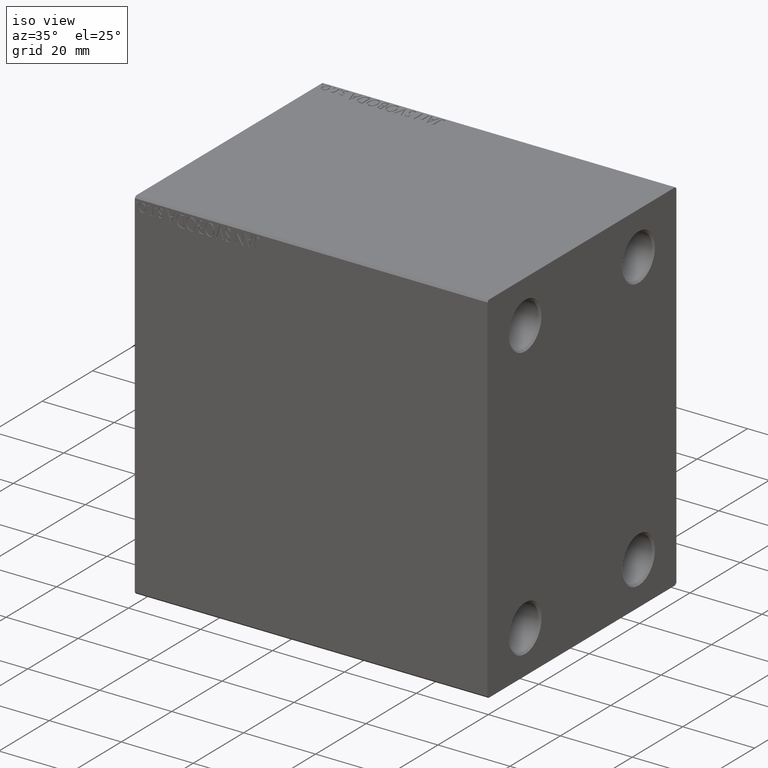
[diagram: clean part render]
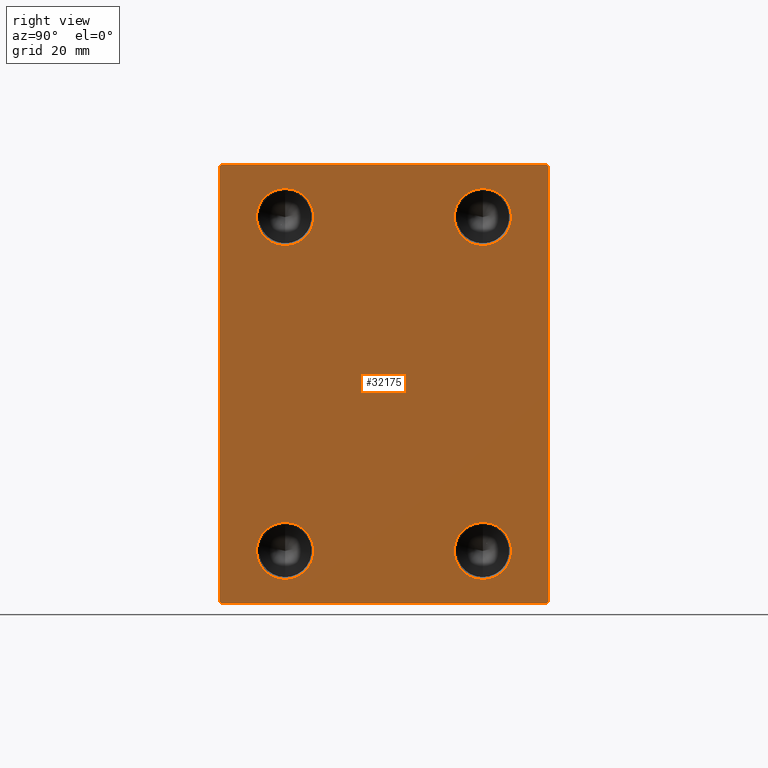
[diagram: tour spotlight — one face highlighted and labeled with its STEP entity id]
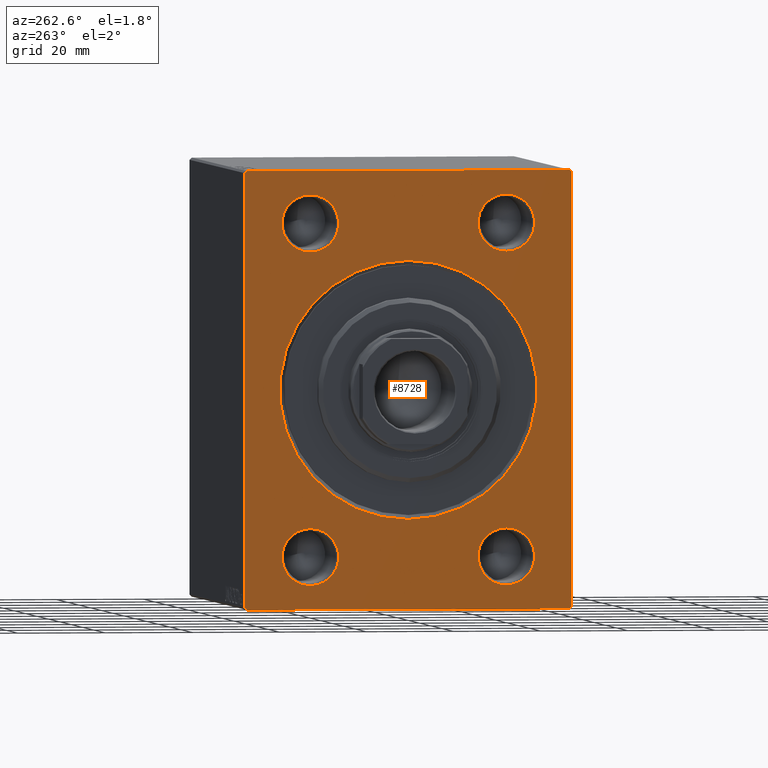
[diagram: tour spotlight — one face highlighted and labeled with its STEP entity id]
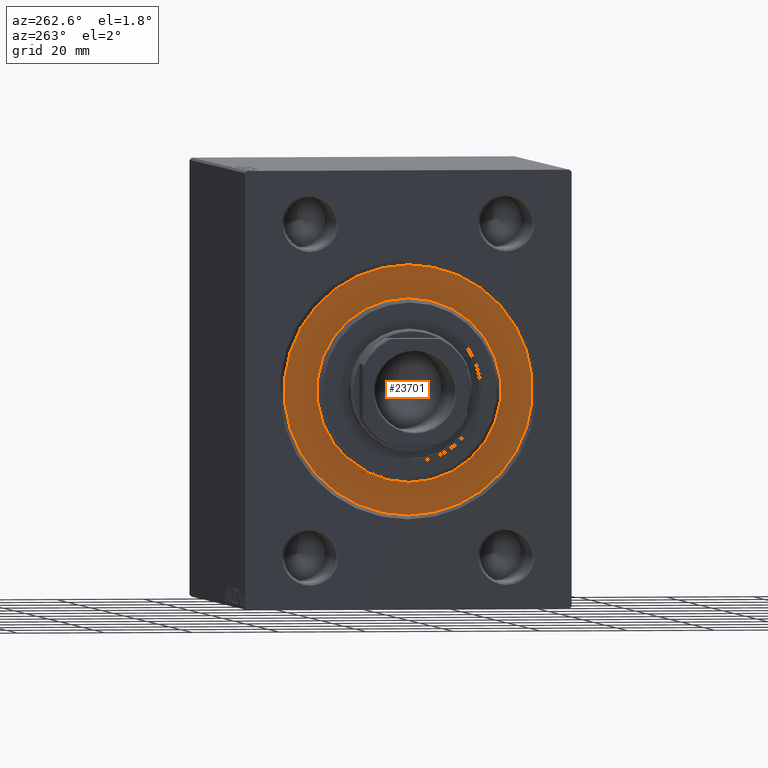
[diagram: tour spotlight — one face highlighted and labeled with its STEP entity id]
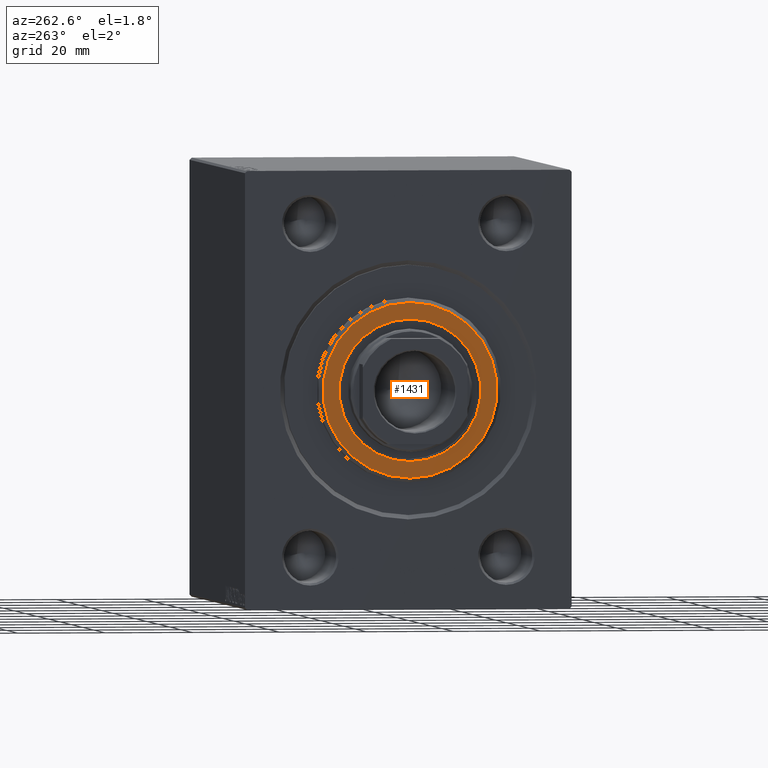
[diagram: tour spotlight — one face highlighted and labeled with its STEP entity id]
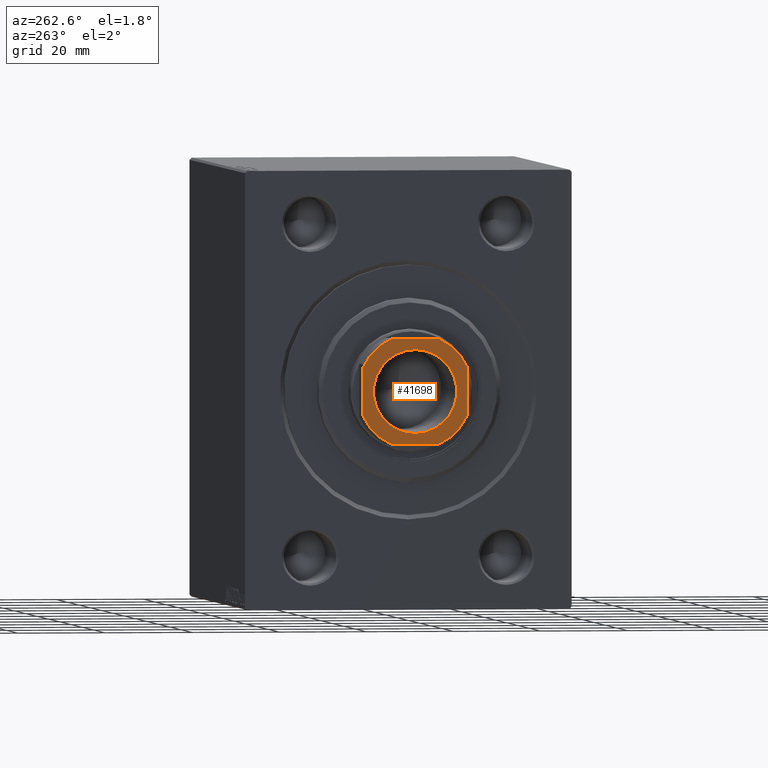
[diagram: tour spotlight — one face highlighted and labeled with its STEP entity id]
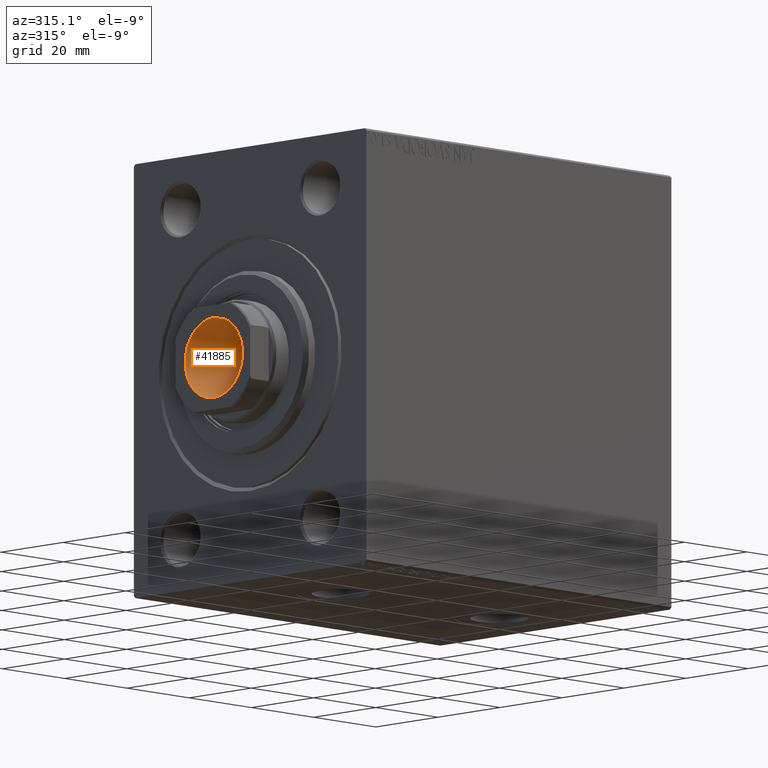
[diagram: tour spotlight — one face highlighted and labeled with its STEP entity id]
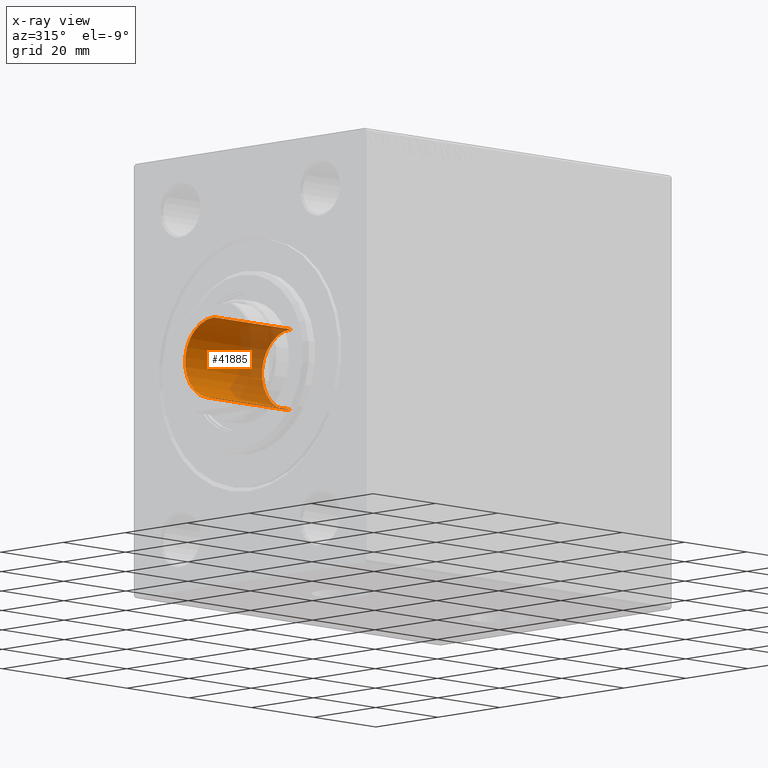
[diagram: x-ray of the same camera — body ghosted, this tour face saturated]
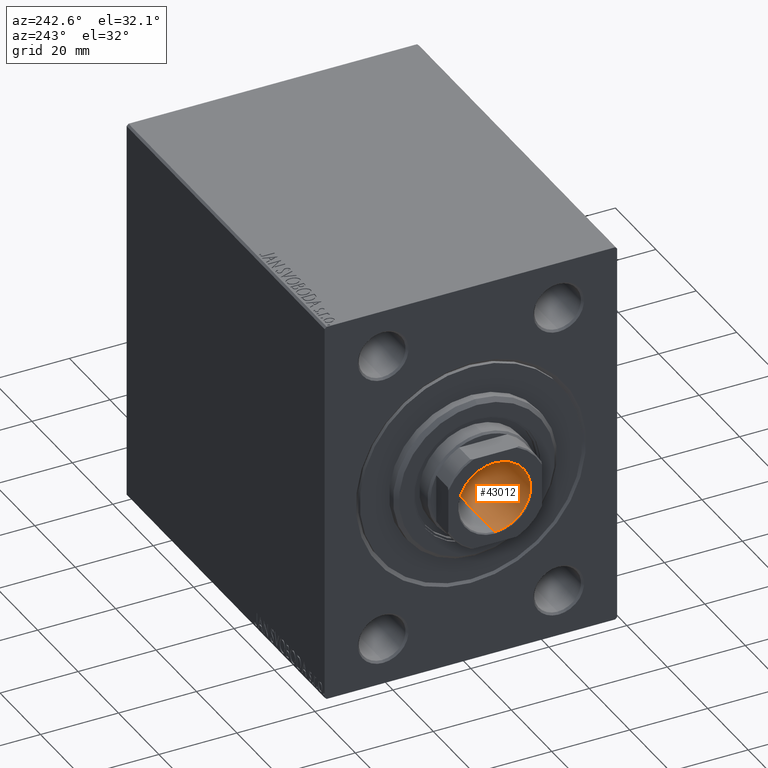
[diagram: tour spotlight — one face highlighted and labeled with its STEP entity id]
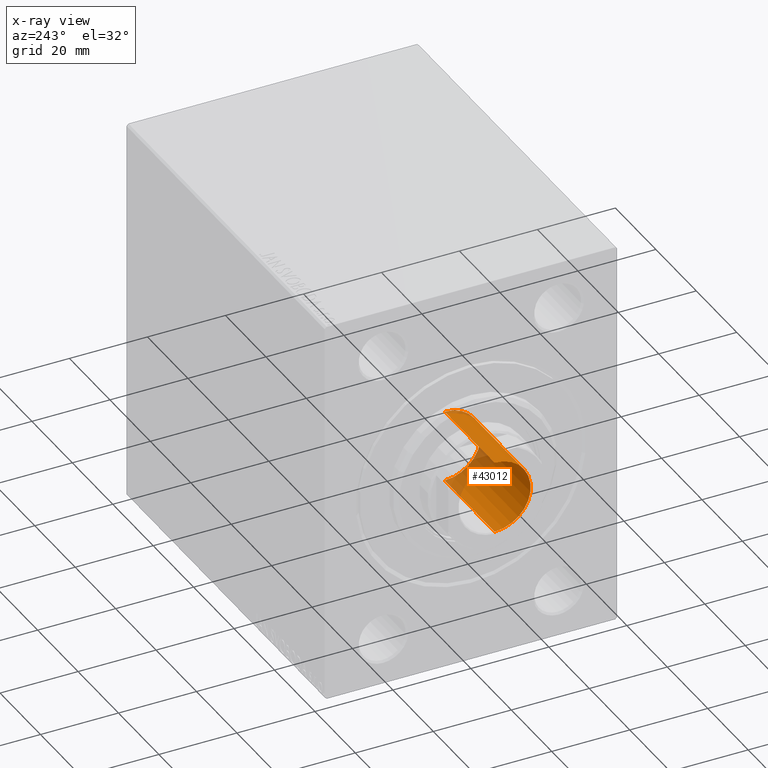
[diagram: x-ray of the same camera — body ghosted, this tour face saturated]
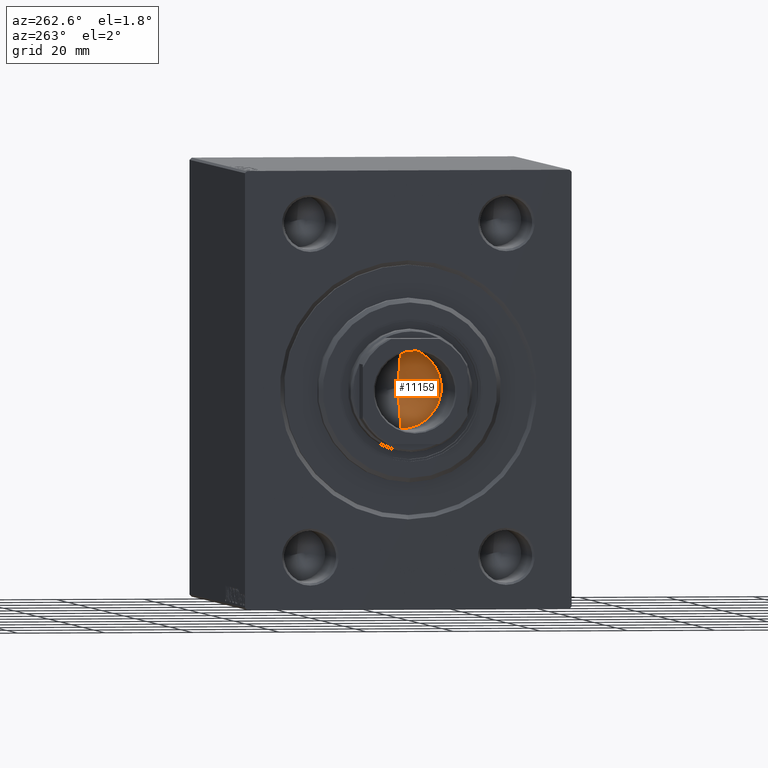
[diagram: tour spotlight — one face highlighted and labeled with its STEP entity id]
A machine part: a face-by-face anatomy tour. The part has 884 B-rep faces; the first image is the clean iso view, then the 8 largest visible faces are spotlighted one at a time (largest first), each with its STEP entity span.

Face 1 — right view, entity #32175. In plain terms, the highlighted planar face has unit normal (1, 0, 0).
Definition (entity closure, byte-faithful):
#378 = CIRCLE ( 'NONE', #31258, 6.499999999999992006 ) ;
#557 = CIRCLE ( 'NONE', #32903, 6.499999999999992006 ) ;
#656 = EDGE_LOOP ( 'NONE', ( #12780, #3390 ) ) ;
#706 = EDGE_LOOP ( 'NONE', ( #22700, #32684 ) ) ;
#926 = CARTESIAN_POINT ( 'NONE',  ( 98.00000000000000000, 22.50000000000000000, -38.00000000000000711 ) ) ;
#1245 = CARTESIAN_POINT ( 'NONE',  ( 98.00000000000000000, 37.00000000000000711, 50.00000000000000711 ) ) ;
#2455 = CARTESIAN_POINT ( 'NONE',  ( 98.00000000000000000, -22.50000000000000000, 31.50000000000000000 ) ) ;
#2709 = CIRCLE ( 'NONE', #25605, 6.499999999999992006 ) ;
#3161 = VERTEX_POINT ( 'NONE', #39024 ) ;
#3390 = ORIENTED_EDGE ( 'NONE', *, *, #21324, .F. ) ;
#3471 = DIRECTION ( 'NONE',  ( 1.000000000000000000, -0.000000000000000000, -0.000000000000000000 ) ) ;
#3757 = DIRECTION ( 'NONE',  ( -0.000000000000000000, 0.7071067811865474617, -0.7071067811865474617 ) ) ;
#3908 = DIRECTION ( 'NONE',  ( 0.000000000000000000, 0.000000000000000000, -1.000000000000000000 ) ) ;
#4563 = CARTESIAN_POINT ( 'NONE',  ( 98.00000000000000000, -37.50000000000000000, 49.49999999999998579 ) ) ;
#4591 = LINE ( 'NONE', #5261, #38910 ) ;
#5261 = CARTESIAN_POINT ( 'NONE',  ( 98.00000000000000000, -37.50000000000000000, -50.00000000000000000 ) ) ;
#5650 = FACE_BOUND ( 'NONE', #706, .T. ) ;
#5760 = CARTESIAN_POINT ( 'NONE',  ( 98.00000000000000000, 37.49999999999999289, 49.50000000000002842 ) ) ;
#6110 = EDGE_CURVE ( 'NONE', #29016, #3161, #4591, .T. ) ;
#6376 = VERTEX_POINT ( 'NONE', #27040 ) ;
#6913 = DIRECTION ( 'NONE',  ( 0.000000000000000000, 0.000000000000000000, -1.000000000000000000 ) ) ;
#7530 = LINE ( 'NONE', #21271, #35783 ) ;
#7902 = ORIENTED_EDGE ( 'NONE', *, *, #28171, .F. ) ;
#8210 = DIRECTION ( 'NONE',  ( -0.000000000000000000, 0.7071067811865524577, 0.7071067811865426878 ) ) ;
#8331 = CARTESIAN_POINT ( 'NONE',  ( 98.00000000000000000, -22.50000000000000000, 44.49999999999998579 ) ) ;
#8929 = CARTESIAN_POINT ( 'NONE',  ( 98.00000000000000000, -22.50000000000000000, 37.99999999999999289 ) ) ;
#9079 = ORIENTED_EDGE ( 'NONE', *, *, #41566, .T. ) ;
#9557 = CARTESIAN_POINT ( 'NONE',  ( 98.00000000000000000, 37.50000000000000711, -50.00000000000000000 ) ) ;
#9885 = AXIS2_PLACEMENT_3D ( 'NONE', #22530, #12615, #19362 ) ;
#11029 = EDGE_CURVE ( 'NONE', #13995, #28272, #30624, .T. ) ;
#11244 = AXIS2_PLACEMENT_3D ( 'NONE', #926, #14622, #28372 ) ;
#11305 = ORIENTED_EDGE ( 'NONE', *, *, #6110, .T. ) ;
#12032 = VECTOR ( 'NONE', #30482, 1000.000000000000000 ) ;
#12615 = DIRECTION ( 'NONE',  ( 1.000000000000000000, 0.000000000000000000, 0.000000000000000000 ) ) ;
#12780 = ORIENTED_EDGE ( 'NONE', *, *, #18842, .F. ) ;
#13053 = FACE_BOUND ( 'NONE', #40717, .T. ) ;
#13995 = VERTEX_POINT ( 'NONE', #5760 ) ;
#14097 = LINE ( 'NONE', #17900, #32911 ) ;
#14601 = CARTESIAN_POINT ( 'NONE',  ( 98.00000000000000000, -22.50000000000000000, -31.50000000000001421 ) ) ;
#14622 = DIRECTION ( 'NONE',  ( 1.000000000000000000, -0.000000000000000000, -0.000000000000000000 ) ) ;
#14850 = ORIENTED_EDGE ( 'NONE', *, *, #41438, .T. ) ;
#15409 = CARTESIAN_POINT ( 'NONE',  ( 98.00000000000000000, 22.50000000000000000, -44.50000000000000000 ) ) ;
#16342 = VECTOR ( 'NONE', #16646, 1000.000000000000000 ) ;
#16646 = DIRECTION ( 'NONE',  ( 0.000000000000000000, -1.000000000000000000, -2.775557561562891844E-16 ) ) ;
#16878 = VERTEX_POINT ( 'NONE', #21732 ) ;
#17676 = CIRCLE ( 'NONE', #11244, 6.499999999999992006 ) ;
#17883 = LINE ( 'NONE', #25323, #21417 ) ;
#17900 = CARTESIAN_POINT ( 'NONE',  ( 98.00000000000000000, -43.50000000000000711, -43.50000000000000711 ) ) ;
#18095 = DIRECTION ( 'NONE',  ( 0.000000000000000000, 0.000000000000000000, -1.000000000000000000 ) ) ;
#18299 = DIRECTION ( 'NONE',  ( 0.000000000000000000, 1.000000000000000000, 0.000000000000000000 ) ) ;
#18478 = CARTESIAN_POINT ( 'NONE',  ( 98.00000000000000000, 22.50000000000000000, 37.99999999999999289 ) ) ;
#18842 = EDGE_CURVE ( 'NONE', #23254, #21996, #21172, .T. ) ;
#19128 = VERTEX_POINT ( 'NONE', #14601 ) ;
#19362 = DIRECTION ( 'NONE',  ( 0.000000000000000000, 0.000000000000000000, -1.000000000000000000 ) ) ;
#20301 = EDGE_CURVE ( 'NONE', #31218, #35541, #26251, .T. ) ;
#20650 = DIRECTION ( 'NONE',  ( 1.000000000000000000, -0.000000000000000000, -0.000000000000000000 ) ) ;
#21051 = CARTESIAN_POINT ( 'NONE',  ( 98.00000000000000000, -22.50000000000000000, -38.00000000000000711 ) ) ;
#21172 = CIRCLE ( 'NONE', #29803, 6.499999999999992006 ) ;
#21271 = CARTESIAN_POINT ( 'NONE',  ( 98.00000000000000000, -43.49999999999972999, 43.50000000000034106 ) ) ;
#21324 = EDGE_CURVE ( 'NONE', #21996, #23254, #378, .T. ) ;
#21381 = ORIENTED_EDGE ( 'NONE', *, *, #30760, .T. ) ;
#21391 = CARTESIAN_POINT ( 'NONE',  ( 98.00000000000000000, -37.50000000000000000, 49.99999999999998579 ) ) ;
#21417 = VECTOR ( 'NONE', #8210, 1000.000000000000000 ) ;
#21732 = CARTESIAN_POINT ( 'NONE',  ( 98.00000000000000000, -37.50000000000000000, -49.49999999999997158 ) ) ;
#21996 = VERTEX_POINT ( 'NONE', #33520 ) ;
#22488 = EDGE_LOOP ( 'NONE', ( #14850, #31794, #9079, #38414, #11305, #32907, #21381, #43921 ) ) ;
#22530 = CARTESIAN_POINT ( 'NONE',  ( 98.00000000000000000, 0.000000000000000000, 0.000000000000000000 ) ) ;
#22700 = ORIENTED_EDGE ( 'NONE', *, *, #20301, .F. ) ;
#22987 = CARTESIAN_POINT ( 'NONE',  ( 98.00000000000000000, 43.49999999999974420, 43.50000000000035527 ) ) ;
#23254 = VERTEX_POINT ( 'NONE', #31725 ) ;
#23268 = ORIENTED_EDGE ( 'NONE', *, *, #24874, .F. ) ;
#23755 = DIRECTION ( 'NONE',  ( 0.000000000000000000, 0.000000000000000000, -1.000000000000000000 ) ) ;
#23847 = VERTEX_POINT ( 'NONE', #4563 ) ;
#24002 = ORIENTED_EDGE ( 'NONE', *, *, #30184, .F. ) ;
#24054 = AXIS2_PLACEMENT_3D ( 'NONE', #8929, #33244, #35959 ) ;
#24201 = DIRECTION ( 'NONE',  ( 1.000000000000000000, -0.000000000000000000, -0.000000000000000000 ) ) ;
#24636 = DIRECTION ( 'NONE',  ( 1.000000000000000000, -0.000000000000000000, -0.000000000000000000 ) ) ;
#24874 = EDGE_CURVE ( 'NONE', #41100, #35981, #17676, .T. ) ;
#25323 = CARTESIAN_POINT ( 'NONE',  ( 98.00000000000000000, 43.49999999999974420, -43.50000000000034817 ) ) ;
#25605 = AXIS2_PLACEMENT_3D ( 'NONE', #28477, #24636, #18095 ) ;
#26251 = CIRCLE ( 'NONE', #24054, 6.499999999999992006 ) ;
#26335 = CIRCLE ( 'NONE', #42174, 6.499999999999992006 ) ;
#26626 = EDGE_LOOP ( 'NONE', ( #7902, #32328 ) ) ;
#26780 = FACE_OUTER_BOUND ( 'NONE', #22488, .T. ) ;
#27040 = CARTESIAN_POINT ( 'NONE',  ( 98.00000000000000000, -36.99999999999999289, 49.99999999999998579 ) ) ;
#27082 = CARTESIAN_POINT ( 'NONE',  ( 98.00000000000000000, 22.50000000000000000, -38.00000000000000711 ) ) ;
#27632 = DIRECTION ( 'NONE',  ( 1.000000000000000000, -0.000000000000000000, -0.000000000000000000 ) ) ;
#28171 = EDGE_CURVE ( 'NONE', #19128, #33769, #2709, .T. ) ;
#28272 = VERTEX_POINT ( 'NONE', #1245 ) ;
#28372 = DIRECTION ( 'NONE',  ( 0.000000000000000000, 0.000000000000000000, -1.000000000000000000 ) ) ;
#28415 = DIRECTION ( 'NONE',  ( 1.000000000000000000, -0.000000000000000000, -0.000000000000000000 ) ) ;
#28477 = CARTESIAN_POINT ( 'NONE',  ( 98.00000000000000000, -22.50000000000000000, -38.00000000000000711 ) ) ;
#29007 = VECTOR ( 'NONE', #43880, 999.9999999999998863 ) ;
#29016 = VERTEX_POINT ( 'NONE', #32756 ) ;
#29253 = CIRCLE ( 'NONE', #38576, 6.499999999999992006 ) ;
#29803 = AXIS2_PLACEMENT_3D ( 'NONE', #18478, #28415, #39197 ) ;
#29885 = EDGE_CURVE ( 'NONE', #33769, #19128, #26335, .T. ) ;
#30184 = EDGE_CURVE ( 'NONE', #35981, #41100, #29253, .T. ) ;
#30482 = DIRECTION ( 'NONE',  ( 0.000000000000000000, -1.387778780781445676E-16, 1.000000000000000000 ) ) ;
#30624 = LINE ( 'NONE', #22987, #29007 ) ;
#30760 = EDGE_CURVE ( 'NONE', #40558, #13995, #40375, .T. ) ;
#30925 = CARTESIAN_POINT ( 'NONE',  ( 98.00000000000000000, -22.50000000000000000, -44.50000000000000000 ) ) ;
#31218 = VERTEX_POINT ( 'NONE', #8331 ) ;
#31258 = AXIS2_PLACEMENT_3D ( 'NONE', #32360, #20650, #37759 ) ;
#31680 = CARTESIAN_POINT ( 'NONE',  ( 98.00000000000000000, 37.50000000000000711, -49.50000000000001421 ) ) ;
#31725 = CARTESIAN_POINT ( 'NONE',  ( 98.00000000000000000, 22.50000000000000000, 44.49999999999998579 ) ) ;
#31794 = ORIENTED_EDGE ( 'NONE', *, *, #41059, .T. ) ;
#31843 = EDGE_CURVE ( 'NONE', #16878, #29016, #14097, .T. ) ;
#32175 = ADVANCED_FACE ( 'NONE', ( #33102, #5650, #40487, #13053, #26780 ), #43429, .T. ) ;
#32328 = ORIENTED_EDGE ( 'NONE', *, *, #29885, .F. ) ;
#32360 = CARTESIAN_POINT ( 'NONE',  ( 98.00000000000000000, 22.50000000000000000, 37.99999999999999289 ) ) ;
#32684 = ORIENTED_EDGE ( 'NONE', *, *, #40501, .F. ) ;
#32756 = CARTESIAN_POINT ( 'NONE',  ( 98.00000000000000000, -37.00000000000000000, -50.00000000000000000 ) ) ;
#32903 = AXIS2_PLACEMENT_3D ( 'NONE', #34834, #27632, #6913 ) ;
#32907 = ORIENTED_EDGE ( 'NONE', *, *, #40934, .T. ) ;
#32911 = VECTOR ( 'NONE', #3757, 1000.000000000000114 ) ;
#33102 = FACE_BOUND ( 'NONE', #656, .T. ) ;
#33244 = DIRECTION ( 'NONE',  ( 1.000000000000000000, -0.000000000000000000, -0.000000000000000000 ) ) ;
#33520 = CARTESIAN_POINT ( 'NONE',  ( 98.00000000000000000, 22.50000000000000000, 31.50000000000000000 ) ) ;
#33769 = VERTEX_POINT ( 'NONE', #30925 ) ;
#34045 = CARTESIAN_POINT ( 'NONE',  ( 98.00000000000000000, 22.50000000000000000, -31.50000000000001421 ) ) ;
#34834 = CARTESIAN_POINT ( 'NONE',  ( 98.00000000000000000, -22.50000000000000000, 37.99999999999999289 ) ) ;
#35003 = DIRECTION ( 'NONE',  ( 0.000000000000000000, -0.7071067811865525687, -0.7071067811865425767 ) ) ;
#35541 = VERTEX_POINT ( 'NONE', #2455 ) ;
#35783 = VECTOR ( 'NONE', #35003, 999.9999999999998863 ) ;
#35959 = DIRECTION ( 'NONE',  ( 0.000000000000000000, 0.000000000000000000, -1.000000000000000000 ) ) ;
#35981 = VERTEX_POINT ( 'NONE', #34045 ) ;
#37593 = LINE ( 'NONE', #40308, #16342 ) ;
#37759 = DIRECTION ( 'NONE',  ( 0.000000000000000000, 0.000000000000000000, -1.000000000000000000 ) ) ;
#38052 = LINE ( 'NONE', #21391, #43691 ) ;
#38262 = DIRECTION ( 'NONE',  ( 0.000000000000000000, 0.000000000000000000, -1.000000000000000000 ) ) ;
#38414 = ORIENTED_EDGE ( 'NONE', *, *, #31843, .T. ) ;
#38576 = AXIS2_PLACEMENT_3D ( 'NONE', #27082, #3471, #3908 ) ;
#38910 = VECTOR ( 'NONE', #18299, 1000.000000000000000 ) ;
#39024 = CARTESIAN_POINT ( 'NONE',  ( 98.00000000000000000, 37.00000000000001421, -50.00000000000000000 ) ) ;
#39197 = DIRECTION ( 'NONE',  ( 0.000000000000000000, 0.000000000000000000, -1.000000000000000000 ) ) ;
#40308 = CARTESIAN_POINT ( 'NONE',  ( 98.00000000000000000, 37.49999999999999289, 50.00000000000000711 ) ) ;
#40375 = LINE ( 'NONE', #9557, #12032 ) ;
#40487 = FACE_BOUND ( 'NONE', #26626, .T. ) ;
#40501 = EDGE_CURVE ( 'NONE', #35541, #31218, #557, .T. ) ;
#40558 = VERTEX_POINT ( 'NONE', #31680 ) ;
#40717 = EDGE_LOOP ( 'NONE', ( #24002, #23268 ) ) ;
#40934 = EDGE_CURVE ( 'NONE', #3161, #40558, #17883, .T. ) ;
#41059 = EDGE_CURVE ( 'NONE', #6376, #23847, #7530, .T. ) ;
#41100 = VERTEX_POINT ( 'NONE', #15409 ) ;
#41438 = EDGE_CURVE ( 'NONE', #28272, #6376, #37593, .T. ) ;
#41566 = EDGE_CURVE ( 'NONE', #23847, #16878, #38052, .T. ) ;
#42174 = AXIS2_PLACEMENT_3D ( 'NONE', #21051, #24201, #23755 ) ;
#43429 = PLANE ( 'NONE',  #9885 ) ;
#43691 = VECTOR ( 'NONE', #38262, 1000.000000000000000 ) ;
#43880 = DIRECTION ( 'NONE',  ( -0.000000000000000000, -0.7071067811865525687, 0.7071067811865425767 ) ) ;
#43921 = ORIENTED_EDGE ( 'NONE', *, *, #11029, .T. ) ;

Face 2 — auxiliary view, entity #8728. In plain terms, the highlighted planar face has unit normal (1, 0, 0).
Definition (entity closure, byte-faithful):
#118 = FACE_BOUND ( 'NONE', #8829, .T. ) ;
#203 = CARTESIAN_POINT ( 'NONE',  ( 0.000000000000000000, 0.000000000000000000, 29.50000000000001421 ) ) ;
#573 = EDGE_CURVE ( 'NONE', #34578, #28332, #10975, .T. ) ;
#856 = LINE ( 'NONE', #35496, #25661 ) ;
#1149 = DIRECTION ( 'NONE',  ( 1.000000000000000000, 0.000000000000000000, 0.000000000000000000 ) ) ;
#1426 = CARTESIAN_POINT ( 'NONE',  ( 0.000000000000000000, -22.50000000000000000, 44.49999999999998579 ) ) ;
#1524 = VERTEX_POINT ( 'NONE', #18862 ) ;
#1804 = EDGE_CURVE ( 'NONE', #19790, #36662, #12038, .T. ) ;
#1870 = LINE ( 'NONE', #36286, #9156 ) ;
#1904 = CARTESIAN_POINT ( 'NONE',  ( 0.000000000000000000, 22.50000000000000000, 37.99999999999999289 ) ) ;
#2076 = ORIENTED_EDGE ( 'NONE', *, *, #29641, .T. ) ;
#2294 = ORIENTED_EDGE ( 'NONE', *, *, #43944, .T. ) ;
#2340 = DIRECTION ( 'NONE',  ( 1.000000000000000000, 0.000000000000000000, 0.000000000000000000 ) ) ;
#2360 = CARTESIAN_POINT ( 'NONE',  ( 0.000000000000000000, 37.50000000000000711, -49.50000000000001421 ) ) ;
#2610 = DIRECTION ( 'NONE',  ( 1.000000000000000000, 0.000000000000000000, 0.000000000000000000 ) ) ;
#2632 = CARTESIAN_POINT ( 'NONE',  ( 0.000000000000000000, -22.50000000000000000, -44.50000000000000000 ) ) ;
#2803 = AXIS2_PLACEMENT_3D ( 'NONE', #30334, #16347, #19737 ) ;
#3021 = DIRECTION ( 'NONE',  ( 0.000000000000000000, 0.000000000000000000, -1.000000000000000000 ) ) ;
#3503 = DIRECTION ( 'NONE',  ( -0.000000000000000000, 0.7071067811865525687, 0.7071067811865425767 ) ) ;
#3999 = DIRECTION ( 'NONE',  ( 0.000000000000000000, 0.000000000000000000, -1.000000000000000000 ) ) ;
#4039 = LINE ( 'NONE', #14154, #17419 ) ;
#4457 = DIRECTION ( 'NONE',  ( 0.000000000000000000, 0.000000000000000000, -1.000000000000000000 ) ) ;
#5139 = EDGE_CURVE ( 'NONE', #7836, #13293, #8664, .T. ) ;
#5319 = CARTESIAN_POINT ( 'NONE',  ( 0.000000000000000000, 37.00000000000000711, 50.00000000000000711 ) ) ;
#5554 = ORIENTED_EDGE ( 'NONE', *, *, #39573, .F. ) ;
#5717 = VERTEX_POINT ( 'NONE', #26266 ) ;
#5901 = DIRECTION ( 'NONE',  ( -0.000000000000000000, -0.7071067811865474617, 0.7071067811865474617 ) ) ;
#6367 = CIRCLE ( 'NONE', #27228, 6.499999999999992006 ) ;
#6368 = CARTESIAN_POINT ( 'NONE',  ( 0.000000000000000000, 37.50000000000000711, -49.50000000000001421 ) ) ;
#6594 = CARTESIAN_POINT ( 'NONE',  ( 0.000000000000000000, 0.000000000000000000, 0.000000000000000000 ) ) ;
#7345 = AXIS2_PLACEMENT_3D ( 'NONE', #1904, #29367, #15605 ) ;
#7417 = DIRECTION ( 'NONE',  ( 0.000000000000000000, 0.000000000000000000, -1.000000000000000000 ) ) ;
#7533 = CARTESIAN_POINT ( 'NONE',  ( 0.000000000000000000, 22.50000000000000000, 44.49999999999998579 ) ) ;
#7836 = VERTEX_POINT ( 'NONE', #5319 ) ;
#8153 = CARTESIAN_POINT ( 'NONE',  ( 0.000000000000000000, -37.50000000000000000, -50.00000000000000000 ) ) ;
#8664 = LINE ( 'NONE', #32087, #37422 ) ;
#8728 = ADVANCED_FACE ( 'NONE', ( #9780, #118, #43970, #23498, #20558, #13159 ), #40600, .F. ) ;
#8829 = EDGE_LOOP ( 'NONE', ( #25704, #43190 ) ) ;
#8863 = DIRECTION ( 'NONE',  ( 0.000000000000000000, -0.7071067811865524577, -0.7071067811865426878 ) ) ;
#9156 = VECTOR ( 'NONE', #29330, 1000.000000000000000 ) ;
#9755 = EDGE_CURVE ( 'NONE', #27199, #1524, #31068, .T. ) ;
#9780 = FACE_BOUND ( 'NONE', #32689, .T. ) ;
#10351 = ORIENTED_EDGE ( 'NONE', *, *, #12676, .T. ) ;
#10435 = CIRCLE ( 'NONE', #16168, 29.50000000000001421 ) ;
#10975 = CIRCLE ( 'NONE', #25347, 6.499999999999992006 ) ;
#11037 = DIRECTION ( 'NONE',  ( 1.000000000000000000, 0.000000000000000000, 0.000000000000000000 ) ) ;
#11041 = DIRECTION ( 'NONE',  ( 0.000000000000000000, 0.000000000000000000, -1.000000000000000000 ) ) ;
#11944 = CARTESIAN_POINT ( 'NONE',  ( 0.000000000000000000, 22.50000000000000000, -38.00000000000000711 ) ) ;
#12038 = LINE ( 'NONE', #2360, #27631 ) ;
#12083 = CARTESIAN_POINT ( 'NONE',  ( 0.000000000000000000, 22.50000000000000000, -38.00000000000000711 ) ) ;
#12676 = EDGE_CURVE ( 'NONE', #39550, #5717, #43475, .T. ) ;
#12689 = AXIS2_PLACEMENT_3D ( 'NONE', #42312, #11037, #7417 ) ;
#13103 = DIRECTION ( 'NONE',  ( 0.000000000000000000, 0.000000000000000000, -1.000000000000000000 ) ) ;
#13153 = CARTESIAN_POINT ( 'NONE',  ( 0.000000000000000000, -36.99999999999999289, 49.99999999999998579 ) ) ;
#13159 = FACE_OUTER_BOUND ( 'NONE', #33955, .T. ) ;
#13293 = VERTEX_POINT ( 'NONE', #13153 ) ;
#13323 = CARTESIAN_POINT ( 'NONE',  ( 0.000000000000000000, -22.50000000000000000, 37.99999999999999289 ) ) ;
#13512 = VECTOR ( 'NONE', #35630, 1000.000000000000000 ) ;
#14130 = CARTESIAN_POINT ( 'NONE',  ( 0.000000000000000000, 22.50000000000000000, 37.99999999999999289 ) ) ;
#14154 = CARTESIAN_POINT ( 'NONE',  ( 0.000000000000000000, 37.00000000000000711, 50.00000000000000711 ) ) ;
#14787 = EDGE_LOOP ( 'NONE', ( #37742, #18368 ) ) ;
#14799 = EDGE_CURVE ( 'NONE', #7836, #17417, #4039, .T. ) ;
#14981 = CARTESIAN_POINT ( 'NONE',  ( 0.000000000000000000, 22.50000000000000000, -44.50000000000000000 ) ) ;
#15605 = DIRECTION ( 'NONE',  ( 0.000000000000000000, 0.000000000000000000, -1.000000000000000000 ) ) ;
#15806 = CARTESIAN_POINT ( 'NONE',  ( 0.000000000000000000, -37.00000000000000000, -50.00000000000000000 ) ) ;
#16168 = AXIS2_PLACEMENT_3D ( 'NONE', #6594, #40583, #3021 ) ;
#16347 = DIRECTION ( 'NONE',  ( 1.000000000000000000, 0.000000000000000000, 0.000000000000000000 ) ) ;
#16394 = EDGE_CURVE ( 'NONE', #28332, #34578, #29032, .T. ) ;
#16406 = CIRCLE ( 'NONE', #2803, 6.499999999999992006 ) ;
#16740 = VERTEX_POINT ( 'NONE', #44239 ) ;
#17273 = CARTESIAN_POINT ( 'NONE',  ( 0.000000000000000000, -22.50000000000000000, -31.50000000000001421 ) ) ;
#17417 = VERTEX_POINT ( 'NONE', #31261 ) ;
#17419 = VECTOR ( 'NONE', #24955, 999.9999999999998863 ) ;
#18368 = ORIENTED_EDGE ( 'NONE', *, *, #35581, .T. ) ;
#18597 = VERTEX_POINT ( 'NONE', #27832 ) ;
#18835 = EDGE_CURVE ( 'NONE', #35833, #13293, #28868, .T. ) ;
#18862 = CARTESIAN_POINT ( 'NONE',  ( 0.000000000000000000, 22.50000000000000000, 31.50000000000000000 ) ) ;
#18896 = DIRECTION ( 'NONE',  ( 0.000000000000000000, 0.000000000000000000, -1.000000000000000000 ) ) ;
#19556 = DIRECTION ( 'NONE',  ( 1.000000000000000000, 0.000000000000000000, 0.000000000000000000 ) ) ;
#19737 = DIRECTION ( 'NONE',  ( 0.000000000000000000, 0.000000000000000000, -1.000000000000000000 ) ) ;
#19790 = VERTEX_POINT ( 'NONE', #6368 ) ;
#20241 = ORIENTED_EDGE ( 'NONE', *, *, #18835, .T. ) ;
#20558 = FACE_BOUND ( 'NONE', #36843, .T. ) ;
#21374 = EDGE_LOOP ( 'NONE', ( #29560, #2294 ) ) ;
#21527 = ORIENTED_EDGE ( 'NONE', *, *, #16394, .T. ) ;
#21569 = EDGE_CURVE ( 'NONE', #25219, #16740, #10435, .T. ) ;
#22076 = CIRCLE ( 'NONE', #37899, 6.499999999999992006 ) ;
#22134 = VERTEX_POINT ( 'NONE', #17273 ) ;
#22867 = DIRECTION ( 'NONE',  ( 1.000000000000000000, 0.000000000000000000, 0.000000000000000000 ) ) ;
#23160 = VECTOR ( 'NONE', #5901, 1000.000000000000114 ) ;
#23498 = FACE_BOUND ( 'NONE', #21374, .T. ) ;
#23947 = DIRECTION ( 'NONE',  ( 0.000000000000000000, 0.000000000000000000, -1.000000000000000000 ) ) ;
#24019 = VECTOR ( 'NONE', #3503, 999.9999999999998863 ) ;
#24301 = CIRCLE ( 'NONE', #44402, 6.499999999999992006 ) ;
#24955 = DIRECTION ( 'NONE',  ( -0.000000000000000000, 0.7071067811865525687, -0.7071067811865425767 ) ) ;
#25219 = VERTEX_POINT ( 'NONE', #203 ) ;
#25272 = LINE ( 'NONE', #8153, #13512 ) ;
#25347 = AXIS2_PLACEMENT_3D ( 'NONE', #12083, #22867, #25354 ) ;
#25354 = DIRECTION ( 'NONE',  ( 0.000000000000000000, 0.000000000000000000, -1.000000000000000000 ) ) ;
#25661 = VECTOR ( 'NONE', #3999, 1000.000000000000000 ) ;
#25704 = ORIENTED_EDGE ( 'NONE', *, *, #27442, .T. ) ;
#25779 = DIRECTION ( 'NONE',  ( 0.000000000000000000, -1.000000000000000000, -2.775557561562891844E-16 ) ) ;
#26266 = CARTESIAN_POINT ( 'NONE',  ( 0.000000000000000000, -37.50000000000000000, -49.49999999999997158 ) ) ;
#26496 = EDGE_CURVE ( 'NONE', #19790, #17417, #1870, .T. ) ;
#27199 = VERTEX_POINT ( 'NONE', #7533 ) ;
#27228 = AXIS2_PLACEMENT_3D ( 'NONE', #14130, #35286, #4457 ) ;
#27442 = EDGE_CURVE ( 'NONE', #22134, #39682, #22076, .T. ) ;
#27631 = VECTOR ( 'NONE', #8863, 1000.000000000000000 ) ;
#27832 = CARTESIAN_POINT ( 'NONE',  ( 0.000000000000000000, -22.50000000000000000, 31.50000000000000000 ) ) ;
#28332 = VERTEX_POINT ( 'NONE', #32749 ) ;
#28529 = CARTESIAN_POINT ( 'NONE',  ( 0.000000000000000000, -37.00000000000000000, -50.00000000000000000 ) ) ;
#28644 = CARTESIAN_POINT ( 'NONE',  ( 0.000000000000000000, -37.50000000000000000, 49.49999999999998579 ) ) ;
#28833 = CARTESIAN_POINT ( 'NONE',  ( 0.000000000000000000, 37.00000000000001421, -50.00000000000000000 ) ) ;
#28868 = LINE ( 'NONE', #28644, #24019 ) ;
#29032 = CIRCLE ( 'NONE', #39768, 6.499999999999992006 ) ;
#29322 = AXIS2_PLACEMENT_3D ( 'NONE', #13323, #2340, #13103 ) ;
#29330 = DIRECTION ( 'NONE',  ( 0.000000000000000000, -1.387778780781445676E-16, 1.000000000000000000 ) ) ;
#29367 = DIRECTION ( 'NONE',  ( 1.000000000000000000, 0.000000000000000000, 0.000000000000000000 ) ) ;
#29560 = ORIENTED_EDGE ( 'NONE', *, *, #9755, .T. ) ;
#29641 = EDGE_CURVE ( 'NONE', #16740, #25219, #40709, .T. ) ;
#29650 = AXIS2_PLACEMENT_3D ( 'NONE', #44420, #2610, #23947 ) ;
#30334 = CARTESIAN_POINT ( 'NONE',  ( 0.000000000000000000, -22.50000000000000000, 37.99999999999999289 ) ) ;
#31068 = CIRCLE ( 'NONE', #7345, 6.499999999999992006 ) ;
#31261 = CARTESIAN_POINT ( 'NONE',  ( 0.000000000000000000, 37.49999999999999289, 49.50000000000002842 ) ) ;
#31703 = ORIENTED_EDGE ( 'NONE', *, *, #14799, .T. ) ;
#31936 = EDGE_CURVE ( 'NONE', #43436, #18597, #38639, .T. ) ;
#32087 = CARTESIAN_POINT ( 'NONE',  ( 0.000000000000000000, 37.49999999999999289, 50.00000000000000711 ) ) ;
#32300 = ORIENTED_EDGE ( 'NONE', *, *, #573, .T. ) ;
#32689 = EDGE_LOOP ( 'NONE', ( #35302, #2076 ) ) ;
#32749 = CARTESIAN_POINT ( 'NONE',  ( 0.000000000000000000, 22.50000000000000000, -31.50000000000001421 ) ) ;
#32914 = ORIENTED_EDGE ( 'NONE', *, *, #41239, .F. ) ;
#33955 = EDGE_LOOP ( 'NONE', ( #5554, #20241, #42524, #31703, #34816, #34254, #32914, #10351 ) ) ;
#34254 = ORIENTED_EDGE ( 'NONE', *, *, #1804, .T. ) ;
#34578 = VERTEX_POINT ( 'NONE', #14981 ) ;
#34816 = ORIENTED_EDGE ( 'NONE', *, *, #26496, .F. ) ;
#35286 = DIRECTION ( 'NONE',  ( 1.000000000000000000, 0.000000000000000000, 0.000000000000000000 ) ) ;
#35302 = ORIENTED_EDGE ( 'NONE', *, *, #21569, .T. ) ;
#35344 = CARTESIAN_POINT ( 'NONE',  ( 0.000000000000000000, -22.50000000000000000, -38.00000000000000711 ) ) ;
#35496 = CARTESIAN_POINT ( 'NONE',  ( 0.000000000000000000, -37.50000000000000000, 49.99999999999998579 ) ) ;
#35581 = EDGE_CURVE ( 'NONE', #18597, #43436, #16406, .T. ) ;
#35630 = DIRECTION ( 'NONE',  ( 0.000000000000000000, 1.000000000000000000, 0.000000000000000000 ) ) ;
#35833 = VERTEX_POINT ( 'NONE', #42675 ) ;
#36286 = CARTESIAN_POINT ( 'NONE',  ( 0.000000000000000000, 37.50000000000000711, -50.00000000000000000 ) ) ;
#36662 = VERTEX_POINT ( 'NONE', #28833 ) ;
#36843 = EDGE_LOOP ( 'NONE', ( #21527, #32300 ) ) ;
#37422 = VECTOR ( 'NONE', #25779, 1000.000000000000000 ) ;
#37742 = ORIENTED_EDGE ( 'NONE', *, *, #31936, .T. ) ;
#37899 = AXIS2_PLACEMENT_3D ( 'NONE', #39387, #39600, #38941 ) ;
#38639 = CIRCLE ( 'NONE', #29322, 6.499999999999992006 ) ;
#38941 = DIRECTION ( 'NONE',  ( 0.000000000000000000, 0.000000000000000000, -1.000000000000000000 ) ) ;
#39387 = CARTESIAN_POINT ( 'NONE',  ( 0.000000000000000000, -22.50000000000000000, -38.00000000000000711 ) ) ;
#39550 = VERTEX_POINT ( 'NONE', #28529 ) ;
#39573 = EDGE_CURVE ( 'NONE', #35833, #5717, #856, .T. ) ;
#39600 = DIRECTION ( 'NONE',  ( 1.000000000000000000, 0.000000000000000000, 0.000000000000000000 ) ) ;
#39682 = VERTEX_POINT ( 'NONE', #2632 ) ;
#39768 = AXIS2_PLACEMENT_3D ( 'NONE', #11944, #19556, #18896 ) ;
#40583 = DIRECTION ( 'NONE',  ( 1.000000000000000000, 0.000000000000000000, 0.000000000000000000 ) ) ;
#40600 = PLANE ( 'NONE',  #29650 ) ;
#40709 = CIRCLE ( 'NONE', #12689, 29.50000000000001421 ) ;
#41239 = EDGE_CURVE ( 'NONE', #39550, #36662, #25272, .T. ) ;
#41589 = EDGE_CURVE ( 'NONE', #39682, #22134, #24301, .T. ) ;
#42312 = CARTESIAN_POINT ( 'NONE',  ( 0.000000000000000000, 0.000000000000000000, 0.000000000000000000 ) ) ;
#42524 = ORIENTED_EDGE ( 'NONE', *, *, #5139, .F. ) ;
#42675 = CARTESIAN_POINT ( 'NONE',  ( 0.000000000000000000, -37.50000000000000000, 49.49999999999998579 ) ) ;
#43190 = ORIENTED_EDGE ( 'NONE', *, *, #41589, .T. ) ;
#43436 = VERTEX_POINT ( 'NONE', #1426 ) ;
#43475 = LINE ( 'NONE', #15806, #23160 ) ;
#43944 = EDGE_CURVE ( 'NONE', #1524, #27199, #6367, .T. ) ;
#43970 = FACE_BOUND ( 'NONE', #14787, .T. ) ;
#44239 = CARTESIAN_POINT ( 'NONE',  ( 0.000000000000000000, 3.612708057484693970E-15, -29.50000000000001421 ) ) ;
#44402 = AXIS2_PLACEMENT_3D ( 'NONE', #35344, #1149, #11041 ) ;
#44420 = CARTESIAN_POINT ( 'NONE',  ( 0.000000000000000000, 0.000000000000000000, 0.000000000000000000 ) ) ;

Face 3 — auxiliary view, entity #23701. In plain terms, the highlighted planar face has unit normal (1, -0, -0).
Definition (entity closure, byte-faithful):
#785 = DIRECTION ( 'NONE',  ( 1.000000000000000000, -0.000000000000000000, 0.000000000000000000 ) ) ;
#3134 = EDGE_CURVE ( 'NONE', #43022, #28006, #33470, .T. ) ;
#3713 = EDGE_LOOP ( 'NONE', ( #32611, #16864 ) ) ;
#3739 = AXIS2_PLACEMENT_3D ( 'NONE', #26522, #43602, #40017 ) ;
#8280 = CIRCLE ( 'NONE', #41330, 28.50000000000000000 ) ;
#8793 = EDGE_LOOP ( 'NONE', ( #25754, #22254 ) ) ;
#10809 = VERTEX_POINT ( 'NONE', #11085 ) ;
#10883 = DIRECTION ( 'NONE',  ( 0.000000000000000000, 0.000000000000000000, -1.000000000000000000 ) ) ;
#11085 = CARTESIAN_POINT ( 'NONE',  ( 0.000000000000000000, 3.490243377569956456E-15, 28.50000000000000000 ) ) ;
#11325 = EDGE_CURVE ( 'NONE', #10809, #15269, #24576, .T. ) ;
#11725 = CARTESIAN_POINT ( 'NONE',  ( 0.000000000000000000, 0.000000000000000000, 0.000000000000000000 ) ) ;
#13459 = EDGE_CURVE ( 'NONE', #28006, #43022, #41852, .T. ) ;
#14177 = CARTESIAN_POINT ( 'NONE',  ( 0.000000000000000000, 2.571758278209441661E-15, -21.00000000000000000 ) ) ;
#14270 = DIRECTION ( 'NONE',  ( 1.000000000000000000, -0.000000000000000000, 0.000000000000000000 ) ) ;
#14452 = DIRECTION ( 'NONE',  ( -1.000000000000000000, 0.000000000000000000, 0.000000000000000000 ) ) ;
#15269 = VERTEX_POINT ( 'NONE', #40150 ) ;
#15750 = DIRECTION ( 'NONE',  ( -1.000000000000000000, 0.000000000000000000, 0.000000000000000000 ) ) ;
#16864 = ORIENTED_EDGE ( 'NONE', *, *, #3134, .F. ) ;
#17143 = DIRECTION ( 'NONE',  ( 0.000000000000000000, 0.000000000000000000, 1.000000000000000000 ) ) ;
#21206 = FACE_BOUND ( 'NONE', #3713, .T. ) ;
#21911 = EDGE_CURVE ( 'NONE', #15269, #10809, #8280, .T. ) ;
#22254 = ORIENTED_EDGE ( 'NONE', *, *, #11325, .F. ) ;
#22470 = AXIS2_PLACEMENT_3D ( 'NONE', #35198, #785, #10883 ) ;
#22879 = CARTESIAN_POINT ( 'NONE',  ( 0.000000000000000000, 0.000000000000000000, 21.00000000000000000 ) ) ;
#23701 = ADVANCED_FACE ( 'NONE', ( #21206, #41909 ), #37860, .F. ) ;
#24576 = CIRCLE ( 'NONE', #3739, 28.50000000000000000 ) ;
#25754 = ORIENTED_EDGE ( 'NONE', *, *, #21911, .F. ) ;
#26522 = CARTESIAN_POINT ( 'NONE',  ( 0.000000000000000000, 0.000000000000000000, 0.000000000000000000 ) ) ;
#28006 = VERTEX_POINT ( 'NONE', #22879 ) ;
#29887 = AXIS2_PLACEMENT_3D ( 'NONE', #42396, #14270, #32291 ) ;
#32291 = DIRECTION ( 'NONE',  ( 0.000000000000000000, 0.000000000000000000, -1.000000000000000000 ) ) ;
#32611 = ORIENTED_EDGE ( 'NONE', *, *, #13459, .F. ) ;
#33470 = CIRCLE ( 'NONE', #29887, 21.00000000000000000 ) ;
#34498 = CARTESIAN_POINT ( 'NONE',  ( 0.000000000000000000, 0.000000000000000000, 0.000000000000000000 ) ) ;
#35198 = CARTESIAN_POINT ( 'NONE',  ( 0.000000000000000000, 0.000000000000000000, 0.000000000000000000 ) ) ;
#37860 = PLANE ( 'NONE',  #41359 ) ;
#39393 = DIRECTION ( 'NONE',  ( 0.000000000000000000, 0.000000000000000000, 1.000000000000000000 ) ) ;
#40017 = DIRECTION ( 'NONE',  ( 0.000000000000000000, 0.000000000000000000, 1.000000000000000000 ) ) ;
#40150 = CARTESIAN_POINT ( 'NONE',  ( 0.000000000000000000, 0.000000000000000000, -28.50000000000000000 ) ) ;
#41330 = AXIS2_PLACEMENT_3D ( 'NONE', #11725, #15750, #39393 ) ;
#41359 = AXIS2_PLACEMENT_3D ( 'NONE', #34498, #14452, #17143 ) ;
#41852 = CIRCLE ( 'NONE', #22470, 21.00000000000000000 ) ;
#41909 = FACE_OUTER_BOUND ( 'NONE', #8793, .T. ) ;
#42396 = CARTESIAN_POINT ( 'NONE',  ( 0.000000000000000000, 0.000000000000000000, 0.000000000000000000 ) ) ;
#43022 = VERTEX_POINT ( 'NONE', #14177 ) ;
#43602 = DIRECTION ( 'NONE',  ( -1.000000000000000000, 0.000000000000000000, 0.000000000000000000 ) ) ;

Face 4 — auxiliary view, entity #1431. In plain terms, the highlighted planar face has unit normal (-1, 0, 0).
Definition (entity closure, byte-faithful):
#1383 = AXIS2_PLACEMENT_3D ( 'NONE', #41302, #28896, #18506 ) ;
#1431 = ADVANCED_FACE ( 'NONE', ( #23623, #37352 ), #29957, .T. ) ;
#2361 = ORIENTED_EDGE ( 'NONE', *, *, #3404, .F. ) ;
#2937 = AXIS2_PLACEMENT_3D ( 'NONE', #37317, #33948, #37092 ) ;
#3404 = EDGE_CURVE ( 'NONE', #20397, #35735, #38139, .T. ) ;
#4725 = EDGE_CURVE ( 'NONE', #18208, #29676, #7220, .T. ) ;
#6512 = CARTESIAN_POINT ( 'NONE',  ( 3.000000000000000000, 0.000000000000000000, 0.000000000000000000 ) ) ;
#6770 = EDGE_CURVE ( 'NONE', #35735, #20397, #21666, .T. ) ;
#7220 = CIRCLE ( 'NONE', #2937, 19.99999999999999645 ) ;
#10158 = AXIS2_PLACEMENT_3D ( 'NONE', #32828, #15916, #12332 ) ;
#11103 = AXIS2_PLACEMENT_3D ( 'NONE', #6512, #43648, #26568 ) ;
#12332 = DIRECTION ( 'NONE',  ( 0.000000000000000000, 0.000000000000000000, -1.000000000000000000 ) ) ;
#13274 = CARTESIAN_POINT ( 'NONE',  ( 3.000000000000000000, 0.000000000000000000, 19.99999999999999645 ) ) ;
#14655 = CARTESIAN_POINT ( 'NONE',  ( 3.000000000000000000, 0.000000000000000000, 0.000000000000000000 ) ) ;
#15012 = CIRCLE ( 'NONE', #1383, 19.99999999999999645 ) ;
#15101 = DIRECTION ( 'NONE',  ( 1.000000000000000000, 0.000000000000000000, 0.000000000000000000 ) ) ;
#15916 = DIRECTION ( 'NONE',  ( 1.000000000000000000, 0.000000000000000000, 0.000000000000000000 ) ) ;
#16130 = ORIENTED_EDGE ( 'NONE', *, *, #6770, .F. ) ;
#17519 = ORIENTED_EDGE ( 'NONE', *, *, #4725, .T. ) ;
#18208 = VERTEX_POINT ( 'NONE', #13274 ) ;
#18506 = DIRECTION ( 'NONE',  ( 0.000000000000000000, 0.000000000000000000, -1.000000000000000000 ) ) ;
#19967 = ORIENTED_EDGE ( 'NONE', *, *, #44132, .T. ) ;
#20397 = VERTEX_POINT ( 'NONE', #21048 ) ;
#21048 = CARTESIAN_POINT ( 'NONE',  ( 3.000000000000000000, 0.000000000000000000, -16.25000000000000000 ) ) ;
#21666 = CIRCLE ( 'NONE', #10158, 16.25000000000000000 ) ;
#23623 = FACE_OUTER_BOUND ( 'NONE', #34271, .T. ) ;
#26568 = DIRECTION ( 'NONE',  ( 0.000000000000000000, 0.000000000000000000, -1.000000000000000000 ) ) ;
#28896 = DIRECTION ( 'NONE',  ( 1.000000000000000000, -0.000000000000000000, 0.000000000000000000 ) ) ;
#29676 = VERTEX_POINT ( 'NONE', #35340 ) ;
#29957 = PLANE ( 'NONE',  #11103 ) ;
#30248 = AXIS2_PLACEMENT_3D ( 'NONE', #14655, #15101, #34698 ) ;
#31518 = EDGE_LOOP ( 'NONE', ( #2361, #16130 ) ) ;
#32828 = CARTESIAN_POINT ( 'NONE',  ( 3.000000000000000000, 0.000000000000000000, 0.000000000000000000 ) ) ;
#33948 = DIRECTION ( 'NONE',  ( 1.000000000000000000, -0.000000000000000000, 0.000000000000000000 ) ) ;
#34271 = EDGE_LOOP ( 'NONE', ( #17519, #19967 ) ) ;
#34698 = DIRECTION ( 'NONE',  ( 0.000000000000000000, 0.000000000000000000, -1.000000000000000000 ) ) ;
#35340 = CARTESIAN_POINT ( 'NONE',  ( 3.000000000000000000, 2.510525938252074087E-15, -19.99999999999999645 ) ) ;
#35735 = VERTEX_POINT ( 'NONE', #38180 ) ;
#37092 = DIRECTION ( 'NONE',  ( 0.000000000000000000, 0.000000000000000000, -1.000000000000000000 ) ) ;
#37317 = CARTESIAN_POINT ( 'NONE',  ( 3.000000000000000000, 0.000000000000000000, 0.000000000000000000 ) ) ;
#37352 = FACE_BOUND ( 'NONE', #31518, .T. ) ;
#38139 = CIRCLE ( 'NONE', #30248, 16.25000000000000000 ) ;
#38180 = CARTESIAN_POINT ( 'NONE',  ( 3.000000000000000000, 1.990051048614449313E-15, 16.25000000000000000 ) ) ;
#41302 = CARTESIAN_POINT ( 'NONE',  ( 3.000000000000000000, 0.000000000000000000, 0.000000000000000000 ) ) ;
#43648 = DIRECTION ( 'NONE',  ( 1.000000000000000000, -0.000000000000000000, 0.000000000000000000 ) ) ;
#44132 = EDGE_CURVE ( 'NONE', #29676, #18208, #15012, .T. ) ;

Face 5 — auxiliary view, entity #41698. In plain terms, the highlighted planar face has unit normal (-1, 0, 0).
Definition (entity closure, byte-faithful):
#1239 = CARTESIAN_POINT ( 'NONE',  ( -5.499090833947052559, -12.00000000000000355, 96.00000000000000000 ) ) ;
#1644 = VERTEX_POINT ( 'NONE', #2673 ) ;
#1743 = CARTESIAN_POINT ( 'NONE',  ( 0.000000000000000000, 0.000000000000000000, 96.00000000000000000 ) ) ;
#2673 = CARTESIAN_POINT ( 'NONE',  ( -9.549999999999988276, 1.169537693185720980E-15, 96.00000000000000000 ) ) ;
#2692 = DIRECTION ( 'NONE',  ( -1.000000000000000000, -0.000000000000000000, -0.000000000000000000 ) ) ;
#2731 = AXIS2_PLACEMENT_3D ( 'NONE', #22508, #22061, #18888 ) ;
#3383 = EDGE_CURVE ( 'NONE', #22690, #4602, #11525, .T. ) ;
#3406 = DIRECTION ( 'NONE',  ( 1.000000000000000000, 0.000000000000000000, 0.000000000000000000 ) ) ;
#3430 = VERTEX_POINT ( 'NONE', #25467 ) ;
#3629 = CARTESIAN_POINT ( 'NONE',  ( 0.000000000000000000, 0.000000000000000000, 96.00000000000000000 ) ) ;
#4429 = ORIENTED_EDGE ( 'NONE', *, *, #37481, .T. ) ;
#4602 = VERTEX_POINT ( 'NONE', #41857 ) ;
#5516 = DIRECTION ( 'NONE',  ( 1.000000000000000000, 0.000000000000000000, 0.000000000000000000 ) ) ;
#5847 = CARTESIAN_POINT ( 'NONE',  ( 0.000000000000000000, 0.000000000000000000, 96.00000000000000000 ) ) ;
#7099 = EDGE_LOOP ( 'NONE', ( #11635, #20830, #18275, #40894, #18919, #10998, #20742, #31525 ) ) ;
#7457 = VECTOR ( 'NONE', #11742, 1000.000000000000000 ) ;
#8548 = FACE_OUTER_BOUND ( 'NONE', #7099, .T. ) ;
#8594 = CARTESIAN_POINT ( 'NONE',  ( 5.499090833947041901, 11.99999999999999645, 96.00000000000000000 ) ) ;
#9133 = DIRECTION ( 'NONE',  ( 0.000000000000000000, -0.000000000000000000, -1.000000000000000000 ) ) ;
#9224 = DIRECTION ( 'NONE',  ( 0.000000000000000000, -0.000000000000000000, -1.000000000000000000 ) ) ;
#9265 = VERTEX_POINT ( 'NONE', #37343 ) ;
#9722 = EDGE_CURVE ( 'NONE', #12462, #36111, #15381, .T. ) ;
#10794 = EDGE_CURVE ( 'NONE', #10944, #22226, #41677, .T. ) ;
#10944 = VERTEX_POINT ( 'NONE', #19588 ) ;
#10998 = ORIENTED_EDGE ( 'NONE', *, *, #29522, .T. ) ;
#11309 = EDGE_LOOP ( 'NONE', ( #4429, #34826 ) ) ;
#11375 = VECTOR ( 'NONE', #2692, 1000.000000000000000 ) ;
#11525 = LINE ( 'NONE', #21641, #7457 ) ;
#11635 = ORIENTED_EDGE ( 'NONE', *, *, #10794, .T. ) ;
#11742 = DIRECTION ( 'NONE',  ( 1.000000000000000000, 0.000000000000000000, 0.000000000000000000 ) ) ;
#11854 = DIRECTION ( 'NONE',  ( 1.000000000000000000, 0.000000000000000000, 0.000000000000000000 ) ) ;
#12025 = CARTESIAN_POINT ( 'NONE',  ( -12.00000000000000355, 11.99999999999999645, 96.00000000000000000 ) ) ;
#12462 = VERTEX_POINT ( 'NONE', #33200 ) ;
#13783 = EDGE_CURVE ( 'NONE', #9265, #12462, #18878, .T. ) ;
#15381 = LINE ( 'NONE', #12025, #18854 ) ;
#15534 = DIRECTION ( 'NONE',  ( -0.000000000000000000, 0.000000000000000000, 1.000000000000000000 ) ) ;
#15947 = PLANE ( 'NONE',  #2731 ) ;
#16872 = DIRECTION ( 'NONE',  ( -0.000000000000000000, 0.000000000000000000, 1.000000000000000000 ) ) ;
#17087 = AXIS2_PLACEMENT_3D ( 'NONE', #5847, #9224, #39827 ) ;
#17123 = CIRCLE ( 'NONE', #42304, 13.20000000000000995 ) ;
#17811 = DIRECTION ( 'NONE',  ( -2.168404344971008868E-16, 1.000000000000000000, -0.000000000000000000 ) ) ;
#18275 = ORIENTED_EDGE ( 'NONE', *, *, #41903, .T. ) ;
#18854 = VECTOR ( 'NONE', #42615, 1000.000000000000000 ) ;
#18878 = CIRCLE ( 'NONE', #35414, 13.20000000000002238 ) ;
#18888 = DIRECTION ( 'NONE',  ( 1.000000000000000000, 0.000000000000000000, 0.000000000000000000 ) ) ;
#18919 = ORIENTED_EDGE ( 'NONE', *, *, #9722, .T. ) ;
#19357 = CARTESIAN_POINT ( 'NONE',  ( 0.000000000000000000, 0.000000000000000000, 96.00000000000000000 ) ) ;
#19588 = CARTESIAN_POINT ( 'NONE',  ( 12.00000000000000000, -5.499090833947034795, 96.00000000000000000 ) ) ;
#20656 = CIRCLE ( 'NONE', #33594, 13.20000000000000995 ) ;
#20742 = ORIENTED_EDGE ( 'NONE', *, *, #3383, .T. ) ;
#20830 = ORIENTED_EDGE ( 'NONE', *, *, #35111, .T. ) ;
#21641 = CARTESIAN_POINT ( 'NONE',  ( -11.99999999999999822, -12.00000000000000355, 96.00000000000000000 ) ) ;
#22061 = DIRECTION ( 'NONE',  ( -0.000000000000000000, 0.000000000000000000, 1.000000000000000000 ) ) ;
#22226 = VERTEX_POINT ( 'NONE', #27650 ) ;
#22508 = CARTESIAN_POINT ( 'NONE',  ( 0.000000000000000000, 0.000000000000000000, 96.00000000000000000 ) ) ;
#22610 = DIRECTION ( 'NONE',  ( -0.000000000000000000, 0.000000000000000000, 1.000000000000000000 ) ) ;
#22690 = VERTEX_POINT ( 'NONE', #1239 ) ;
#22878 = CIRCLE ( 'NONE', #30051, 9.549999999999988276 ) ;
#24566 = CARTESIAN_POINT ( 'NONE',  ( 0.000000000000000000, 0.000000000000000000, 96.00000000000000000 ) ) ;
#24801 = CARTESIAN_POINT ( 'NONE',  ( -12.00000000000000000, -5.499090833947057888, 96.00000000000000000 ) ) ;
#25467 = CARTESIAN_POINT ( 'NONE',  ( 9.549999999999988276, 0.000000000000000000, 96.00000000000000000 ) ) ;
#26465 = CIRCLE ( 'NONE', #17087, 9.549999999999988276 ) ;
#27650 = CARTESIAN_POINT ( 'NONE',  ( 11.99999999999999645, 5.499090833947039236, 96.00000000000000000 ) ) ;
#29522 = EDGE_CURVE ( 'NONE', #36111, #22690, #33534, .T. ) ;
#30051 = AXIS2_PLACEMENT_3D ( 'NONE', #1743, #9133, #11854 ) ;
#31525 = ORIENTED_EDGE ( 'NONE', *, *, #40180, .T. ) ;
#32423 = FACE_BOUND ( 'NONE', #11309, .T. ) ;
#32450 = DIRECTION ( 'NONE',  ( -0.000000000000000000, 0.000000000000000000, 1.000000000000000000 ) ) ;
#32797 = EDGE_CURVE ( 'NONE', #1644, #3430, #22878, .T. ) ;
#32842 = AXIS2_PLACEMENT_3D ( 'NONE', #3629, #16872, #3406 ) ;
#33200 = CARTESIAN_POINT ( 'NONE',  ( -12.00000000000000178, 5.499090833947057000, 96.00000000000000000 ) ) ;
#33534 = CIRCLE ( 'NONE', #32842, 13.20000000000002238 ) ;
#33594 = AXIS2_PLACEMENT_3D ( 'NONE', #39701, #22610, #5516 ) ;
#34826 = ORIENTED_EDGE ( 'NONE', *, *, #32797, .T. ) ;
#35111 = EDGE_CURVE ( 'NONE', #22226, #42800, #17123, .T. ) ;
#35414 = AXIS2_PLACEMENT_3D ( 'NONE', #19357, #15534, #36037 ) ;
#36037 = DIRECTION ( 'NONE',  ( 1.000000000000000000, 0.000000000000000000, 0.000000000000000000 ) ) ;
#36111 = VERTEX_POINT ( 'NONE', #24801 ) ;
#36173 = VECTOR ( 'NONE', #17811, 1000.000000000000000 ) ;
#37321 = LINE ( 'NONE', #40257, #11375 ) ;
#37343 = CARTESIAN_POINT ( 'NONE',  ( -5.499090833947067658, 11.99999999999999645, 96.00000000000000000 ) ) ;
#37481 = EDGE_CURVE ( 'NONE', #3430, #1644, #26465, .T. ) ;
#38966 = DIRECTION ( 'NONE',  ( 1.000000000000000000, 0.000000000000000000, 0.000000000000000000 ) ) ;
#38983 = CARTESIAN_POINT ( 'NONE',  ( 11.99999999999999645, 11.99999999999999645, 96.00000000000000000 ) ) ;
#39701 = CARTESIAN_POINT ( 'NONE',  ( 0.000000000000000000, 0.000000000000000000, 96.00000000000000000 ) ) ;
#39827 = DIRECTION ( 'NONE',  ( 1.000000000000000000, 0.000000000000000000, 0.000000000000000000 ) ) ;
#40180 = EDGE_CURVE ( 'NONE', #4602, #10944, #20656, .T. ) ;
#40257 = CARTESIAN_POINT ( 'NONE',  ( -12.00000000000000355, 11.99999999999999645, 96.00000000000000000 ) ) ;
#40894 = ORIENTED_EDGE ( 'NONE', *, *, #13783, .T. ) ;
#41677 = LINE ( 'NONE', #38983, #36173 ) ;
#41698 = ADVANCED_FACE ( 'NONE', ( #32423, #8548 ), #15947, .T. ) ;
#41857 = CARTESIAN_POINT ( 'NONE',  ( 5.499090833947025914, -12.00000000000000355, 96.00000000000000000 ) ) ;
#41903 = EDGE_CURVE ( 'NONE', #42800, #9265, #37321, .T. ) ;
#42304 = AXIS2_PLACEMENT_3D ( 'NONE', #24566, #32450, #38966 ) ;
#42615 = DIRECTION ( 'NONE',  ( 2.168404344971008868E-16, -1.000000000000000000, 0.000000000000000000 ) ) ;
#42800 = VERTEX_POINT ( 'NONE', #8594 ) ;

Face 6 — auxiliary view, entity #41885. An x-ray twin of the same camera follows (body ghosted, this face saturated) — the face is partly hidden behind the body. In plain terms, the highlighted cylindrical surface (partial cylindrical patch) has radius 9.25 mm, axis along (-1, 0, 0).
Definition (entity closure, byte-faithful):
#467 = VECTOR ( 'NONE', #35440, 1000.000000000000000 ) ;
#4390 = AXIS2_PLACEMENT_3D ( 'NONE', #35133, #31538, #8102 ) ;
#4441 = VERTEX_POINT ( 'NONE', #14387 ) ;
#5644 = EDGE_CURVE ( 'NONE', #28318, #4441, #20190, .T. ) ;
#8102 = DIRECTION ( 'NONE',  ( 1.000000000000000000, 0.000000000000000000, 0.000000000000000000 ) ) ;
#9580 = CIRCLE ( 'NONE', #23928, 9.249999999999994671 ) ;
#13771 = ORIENTED_EDGE ( 'NONE', *, *, #28206, .T. ) ;
#14387 = CARTESIAN_POINT ( 'NONE',  ( -9.249999999999994671, 1.132798289211300909E-15, 95.70000000000000284 ) ) ;
#15194 = EDGE_CURVE ( 'NONE', #37504, #31048, #9580, .T. ) ;
#15302 = CARTESIAN_POINT ( 'NONE',  ( 9.249999999999994671, 0.000000000000000000, 71.00000000000001421 ) ) ;
#16589 = DIRECTION ( 'NONE',  ( -0.000000000000000000, -0.000000000000000000, 1.000000000000000000 ) ) ;
#17081 = AXIS2_PLACEMENT_3D ( 'NONE', #36669, #16589, #26535 ) ;
#19223 = DIRECTION ( 'NONE',  ( -0.000000000000000000, -0.000000000000000000, 1.000000000000000000 ) ) ;
#20190 = CIRCLE ( 'NONE', #4390, 9.249999999999994671 ) ;
#21036 = CARTESIAN_POINT ( 'NONE',  ( 9.249999999999994671, 0.000000000000000000, 96.00000000000000000 ) ) ;
#22166 = CARTESIAN_POINT ( 'NONE',  ( 9.249999999999994671, 0.000000000000000000, 95.70000000000000284 ) ) ;
#22401 = EDGE_CURVE ( 'NONE', #31048, #4441, #26932, .T. ) ;
#22944 = FACE_OUTER_BOUND ( 'NONE', #42674, .T. ) ;
#23548 = CARTESIAN_POINT ( 'NONE',  ( -9.249999999999994671, 1.132798289211300909E-15, 96.00000000000000000 ) ) ;
#23928 = AXIS2_PLACEMENT_3D ( 'NONE', #33620, #19223, #42860 ) ;
#25145 = ORIENTED_EDGE ( 'NONE', *, *, #15194, .F. ) ;
#26535 = DIRECTION ( 'NONE',  ( 1.000000000000000000, 0.000000000000000000, 0.000000000000000000 ) ) ;
#26932 = LINE ( 'NONE', #23548, #36350 ) ;
#28206 = EDGE_CURVE ( 'NONE', #37504, #28318, #39039, .T. ) ;
#28318 = VERTEX_POINT ( 'NONE', #22166 ) ;
#31048 = VERTEX_POINT ( 'NONE', #34023 ) ;
#31538 = DIRECTION ( 'NONE',  ( 0.000000000000000000, 0.000000000000000000, 1.000000000000000000 ) ) ;
#33511 = CYLINDRICAL_SURFACE ( 'NONE', #17081, 9.249999999999994671 ) ;
#33620 = CARTESIAN_POINT ( 'NONE',  ( 0.000000000000000000, 0.000000000000000000, 71.00000000000001421 ) ) ;
#33906 = DIRECTION ( 'NONE',  ( -0.000000000000000000, -0.000000000000000000, 1.000000000000000000 ) ) ;
#34023 = CARTESIAN_POINT ( 'NONE',  ( -9.249999999999994671, 1.132798289211300909E-15, 71.00000000000001421 ) ) ;
#35133 = CARTESIAN_POINT ( 'NONE',  ( 0.000000000000000000, 0.000000000000000000, 95.70000000000000284 ) ) ;
#35440 = DIRECTION ( 'NONE',  ( -0.000000000000000000, -0.000000000000000000, 1.000000000000000000 ) ) ;
#36350 = VECTOR ( 'NONE', #33906, 1000.000000000000000 ) ;
#36669 = CARTESIAN_POINT ( 'NONE',  ( 0.000000000000000000, 0.000000000000000000, 96.00000000000000000 ) ) ;
#37504 = VERTEX_POINT ( 'NONE', #15302 ) ;
#39039 = LINE ( 'NONE', #21036, #467 ) ;
#41293 = ORIENTED_EDGE ( 'NONE', *, *, #22401, .F. ) ;
#41885 = ADVANCED_FACE ( 'NONE', ( #22944 ), #33511, .F. ) ;
#42674 = EDGE_LOOP ( 'NONE', ( #41293, #25145, #13771, #44098 ) ) ;
#42860 = DIRECTION ( 'NONE',  ( 1.000000000000000000, 0.000000000000000000, 0.000000000000000000 ) ) ;
#44098 = ORIENTED_EDGE ( 'NONE', *, *, #5644, .T. ) ;

Face 7 — auxiliary view, entity #43012. An x-ray twin of the same camera follows (body ghosted, this face saturated) — the face is partly hidden behind the body. In plain terms, the highlighted cylindrical surface (partial cylindrical patch) has radius 9.25 mm, axis along (-1, 0, 0).
Definition (entity closure, byte-faithful):
#467 = VECTOR ( 'NONE', #35440, 1000.000000000000000 ) ;
#3971 = EDGE_CURVE ( 'NONE', #4441, #28318, #33109, .T. ) ;
#4289 = ORIENTED_EDGE ( 'NONE', *, *, #3971, .T. ) ;
#4291 = DIRECTION ( 'NONE',  ( -0.000000000000000000, -0.000000000000000000, 1.000000000000000000 ) ) ;
#4441 = VERTEX_POINT ( 'NONE', #14387 ) ;
#14334 = DIRECTION ( 'NONE',  ( 1.000000000000000000, 0.000000000000000000, 0.000000000000000000 ) ) ;
#14387 = CARTESIAN_POINT ( 'NONE',  ( -9.249999999999994671, 1.132798289211300909E-15, 95.70000000000000284 ) ) ;
#15302 = CARTESIAN_POINT ( 'NONE',  ( 9.249999999999994671, 0.000000000000000000, 71.00000000000001421 ) ) ;
#17264 = DIRECTION ( 'NONE',  ( -0.000000000000000000, -0.000000000000000000, 1.000000000000000000 ) ) ;
#21036 = CARTESIAN_POINT ( 'NONE',  ( 9.249999999999994671, 0.000000000000000000, 96.00000000000000000 ) ) ;
#21765 = EDGE_LOOP ( 'NONE', ( #28798, #41007, #4289, #30281 ) ) ;
#21959 = CARTESIAN_POINT ( 'NONE',  ( 0.000000000000000000, 0.000000000000000000, 71.00000000000001421 ) ) ;
#22166 = CARTESIAN_POINT ( 'NONE',  ( 9.249999999999994671, 0.000000000000000000, 95.70000000000000284 ) ) ;
#22171 = AXIS2_PLACEMENT_3D ( 'NONE', #21959, #17264, #34400 ) ;
#22401 = EDGE_CURVE ( 'NONE', #31048, #4441, #26932, .T. ) ;
#23548 = CARTESIAN_POINT ( 'NONE',  ( -9.249999999999994671, 1.132798289211300909E-15, 96.00000000000000000 ) ) ;
#24312 = CARTESIAN_POINT ( 'NONE',  ( 0.000000000000000000, 0.000000000000000000, 96.00000000000000000 ) ) ;
#25764 = CIRCLE ( 'NONE', #22171, 9.249999999999994671 ) ;
#26932 = LINE ( 'NONE', #23548, #36350 ) ;
#27687 = FACE_OUTER_BOUND ( 'NONE', #21765, .T. ) ;
#28206 = EDGE_CURVE ( 'NONE', #37504, #28318, #39039, .T. ) ;
#28318 = VERTEX_POINT ( 'NONE', #22166 ) ;
#28798 = ORIENTED_EDGE ( 'NONE', *, *, #42101, .F. ) ;
#30281 = ORIENTED_EDGE ( 'NONE', *, *, #28206, .F. ) ;
#31048 = VERTEX_POINT ( 'NONE', #34023 ) ;
#31289 = DIRECTION ( 'NONE',  ( 1.000000000000000000, 0.000000000000000000, 0.000000000000000000 ) ) ;
#33109 = CIRCLE ( 'NONE', #39580, 9.249999999999994671 ) ;
#33274 = CARTESIAN_POINT ( 'NONE',  ( 0.000000000000000000, 0.000000000000000000, 95.70000000000000284 ) ) ;
#33906 = DIRECTION ( 'NONE',  ( -0.000000000000000000, -0.000000000000000000, 1.000000000000000000 ) ) ;
#34023 = CARTESIAN_POINT ( 'NONE',  ( -9.249999999999994671, 1.132798289211300909E-15, 71.00000000000001421 ) ) ;
#34400 = DIRECTION ( 'NONE',  ( 1.000000000000000000, 0.000000000000000000, 0.000000000000000000 ) ) ;
#35035 = DIRECTION ( 'NONE',  ( 0.000000000000000000, 0.000000000000000000, 1.000000000000000000 ) ) ;
#35440 = DIRECTION ( 'NONE',  ( -0.000000000000000000, -0.000000000000000000, 1.000000000000000000 ) ) ;
#36350 = VECTOR ( 'NONE', #33906, 1000.000000000000000 ) ;
#37504 = VERTEX_POINT ( 'NONE', #15302 ) ;
#39039 = LINE ( 'NONE', #21036, #467 ) ;
#39580 = AXIS2_PLACEMENT_3D ( 'NONE', #33274, #35035, #14334 ) ;
#41007 = ORIENTED_EDGE ( 'NONE', *, *, #22401, .T. ) ;
#41400 = CYLINDRICAL_SURFACE ( 'NONE', #42297, 9.249999999999994671 ) ;
#42101 = EDGE_CURVE ( 'NONE', #31048, #37504, #25764, .T. ) ;
#42297 = AXIS2_PLACEMENT_3D ( 'NONE', #24312, #4291, #31289 ) ;
#43012 = ADVANCED_FACE ( 'NONE', ( #27687 ), #41400, .F. ) ;

Face 8 — auxiliary view, entity #11159. In plain terms, the highlighted conical surface has half-angle 59 deg.
Definition (entity closure, byte-faithful):
#1671 = CARTESIAN_POINT ( 'NONE',  ( -9.249999999999994671, 1.132798289211300909E-15, 71.00000000000001421 ) ) ;
#3411 = VECTOR ( 'NONE', #31813, 1000.000000000000000 ) ;
#4285 = FACE_OUTER_BOUND ( 'NONE', #18350, .T. ) ;
#9422 = EDGE_CURVE ( 'NONE', #41575, #37504, #43540, .T. ) ;
#9583 = CONICAL_SURFACE ( 'NONE', #38220, 9.249999999999994671, 1.029744258676652535 ) ;
#11159 = ADVANCED_FACE ( 'NONE', ( #4285 ), #9583, .F. ) ;
#12079 = CARTESIAN_POINT ( 'NONE',  ( 9.249999999999994671, 0.000000000000000000, 71.00000000000001421 ) ) ;
#12295 = DIRECTION ( 'NONE',  ( 0.8571673007021113344, 0.000000000000000000, 0.5150380749100558209 ) ) ;
#13815 = VECTOR ( 'NONE', #12295, 1000.000000000000000 ) ;
#15302 = CARTESIAN_POINT ( 'NONE',  ( 9.249999999999994671, 0.000000000000000000, 71.00000000000001421 ) ) ;
#17264 = DIRECTION ( 'NONE',  ( -0.000000000000000000, -0.000000000000000000, 1.000000000000000000 ) ) ;
#17981 = DIRECTION ( 'NONE',  ( 1.000000000000000000, 0.000000000000000000, 0.000000000000000000 ) ) ;
#18350 = EDGE_LOOP ( 'NONE', ( #27997, #18704, #28183 ) ) ;
#18704 = ORIENTED_EDGE ( 'NONE', *, *, #30894, .T. ) ;
#21959 = CARTESIAN_POINT ( 'NONE',  ( 0.000000000000000000, 0.000000000000000000, 71.00000000000001421 ) ) ;
#22171 = AXIS2_PLACEMENT_3D ( 'NONE', #21959, #17264, #34400 ) ;
#24836 = LINE ( 'NONE', #1671, #3411 ) ;
#25764 = CIRCLE ( 'NONE', #22171, 9.249999999999994671 ) ;
#27997 = ORIENTED_EDGE ( 'NONE', *, *, #9422, .F. ) ;
#28183 = ORIENTED_EDGE ( 'NONE', *, *, #42101, .T. ) ;
#30894 = EDGE_CURVE ( 'NONE', #41575, #31048, #24836, .T. ) ;
#31048 = VERTEX_POINT ( 'NONE', #34023 ) ;
#31728 = CARTESIAN_POINT ( 'NONE',  ( 0.000000000000000000, 0.000000000000000000, 71.00000000000001421 ) ) ;
#31813 = DIRECTION ( 'NONE',  ( -0.8571673007021113344, 1.049727191138617463E-16, 0.5150380749100558209 ) ) ;
#34023 = CARTESIAN_POINT ( 'NONE',  ( -9.249999999999994671, 1.132798289211300909E-15, 71.00000000000001421 ) ) ;
#34400 = DIRECTION ( 'NONE',  ( 1.000000000000000000, 0.000000000000000000, 0.000000000000000000 ) ) ;
#34657 = DIRECTION ( 'NONE',  ( -0.000000000000000000, -0.000000000000000000, 1.000000000000000000 ) ) ;
#37504 = VERTEX_POINT ( 'NONE', #15302 ) ;
#38220 = AXIS2_PLACEMENT_3D ( 'NONE', #31728, #34657, #17981 ) ;
#41575 = VERTEX_POINT ( 'NONE', #41863 ) ;
#41863 = CARTESIAN_POINT ( 'NONE',  ( -6.793016015247754405E-15, 0.000000000000000000, 65.44203927399505005 ) ) ;
#42101 = EDGE_CURVE ( 'NONE', #31048, #37504, #25764, .T. ) ;
#43540 = LINE ( 'NONE', #12079, #13815 ) ;